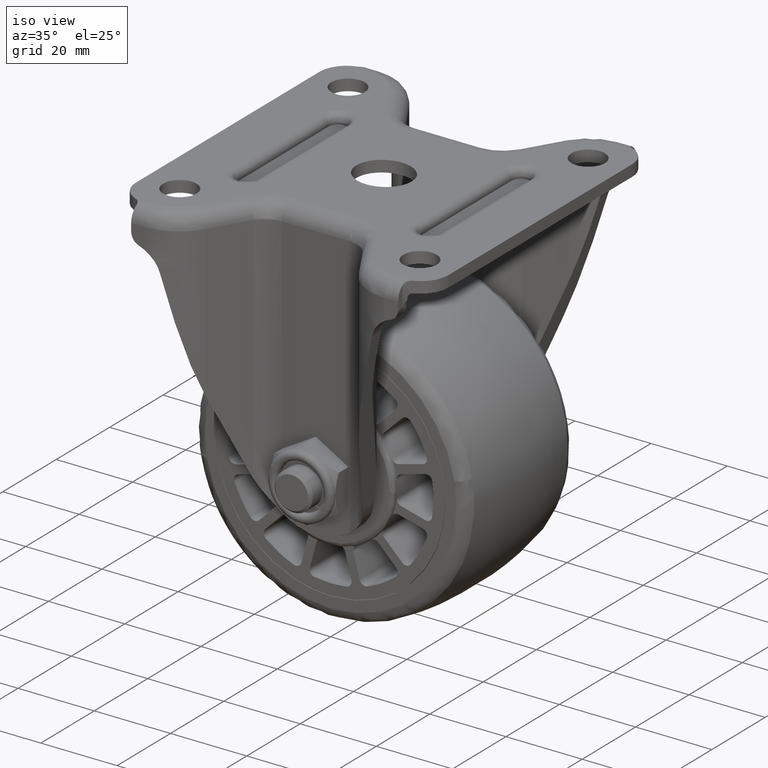
[diagram: clean part render]
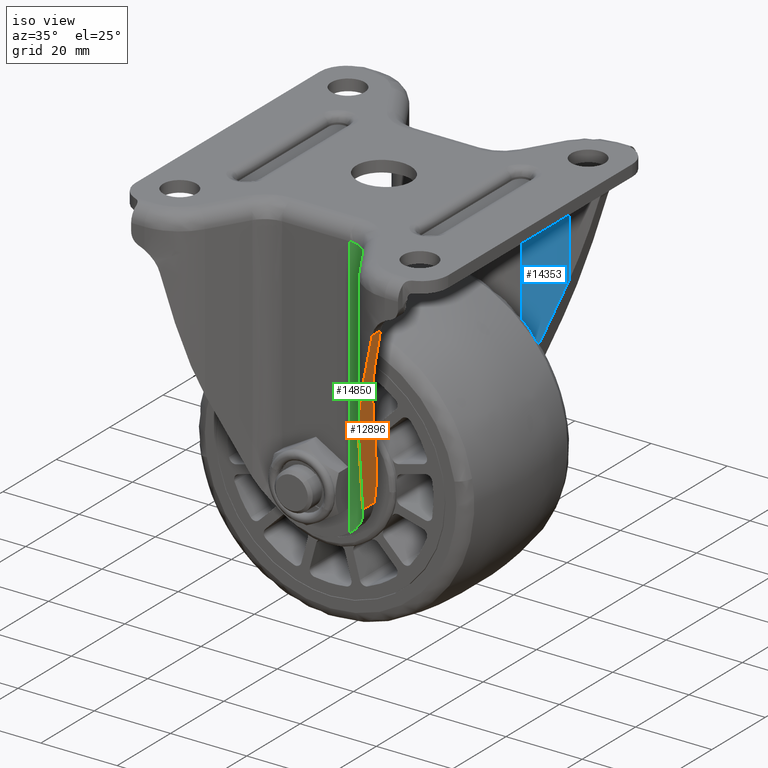
[diagram: same view with three faces highlighted in distinct colors, each labeled with its STEP entity id]
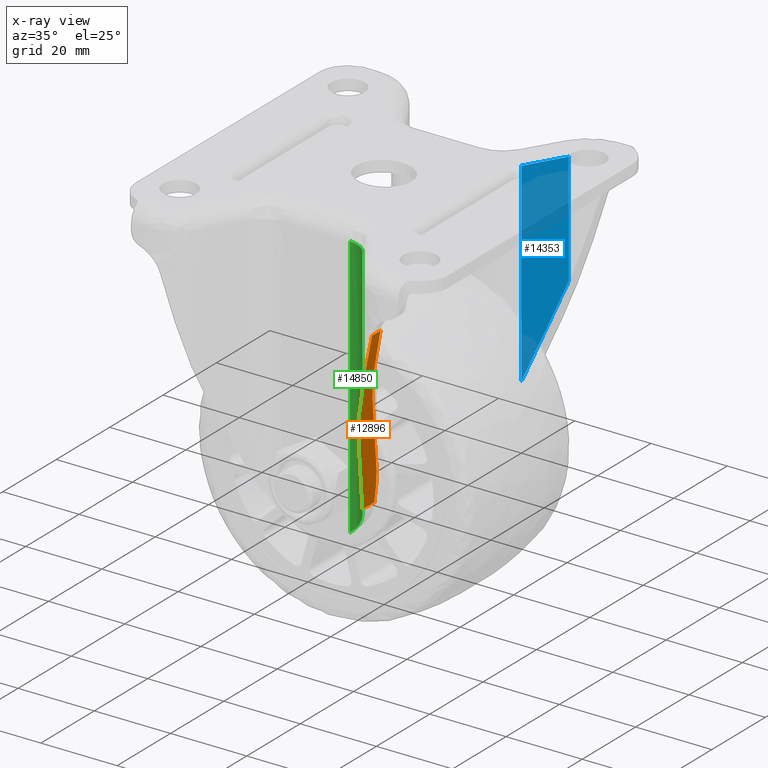
[diagram: x-ray of the same camera — body ghosted, the three highlighted faces saturated]
A machine part, iso view with three faces highlighted in distinct colors.
The next image is the same camera in x-ray (body ghosted, the three faces saturated) — at least one of them is partly hidden behind the body in this view.
Their STEP definitions:

[orange] entity #12896 — the highlighted face is a freeform B-spline surface patch.
#12759=CARTESIAN_POINT('',(14.506453999999900,-24.344544595174550,-2.316132000000000));
#12760=VERTEX_POINT('',#12759);
#12784=CARTESIAN_POINT('',(14.506453999999900,-28.742491813975601,-2.316132000000060));
#12785=VERTEX_POINT('',#12784);
#12786=CARTESIAN_POINT('',(14.506453999999900,-24.344544595174550,-2.316132000000000));
#12787=CARTESIAN_POINT('',(14.506453999999900,-28.742491813975601,-2.316132000000060));
#12788=QUASI_UNIFORM_CURVE('',1,(#12786,#12787),.UNSPECIFIED.,.F.,.U.);
#12789=EDGE_CURVE('',#12760,#12785,#12788,.T.);
#12824=CARTESIAN_POINT('',(28.507057730370722,-45.217106575156713,50.905077057196721));
#12825=CARTESIAN_POINT('',(13.840393229475060,-45.217106575156713,-4.848062779242298));
#12826=CARTESIAN_POINT('',(28.507057730370722,-23.351559222332629,50.905077057196721));
#12827=CARTESIAN_POINT('',(13.840393229475049,-23.351559222332629,-4.848062779242298));
#12828=B_SPLINE_SURFACE_WITH_KNOTS('',1,1,((#12824,#12826),(#12825,#12827)),.UNSPECIFIED.,.F.,.F.,.U.,(2,2),(2,2),(0.0,57.650009967070751),(0.0,21.865547352824080),.UNSPECIFIED.);
#12829=CARTESIAN_POINT('',(20.182175332900950,-38.293392560194100,19.259276991360551));
#12830=VERTEX_POINT('',#12829);
#12831=CARTESIAN_POINT('',(20.182175332900950,-38.293392560194100,19.259276991360551));
#12832=CARTESIAN_POINT('',(14.506453999999900,-28.742491813975601,-2.316132000000060));
#12833=QUASI_UNIFORM_CURVE('',1,(#12831,#12832),.UNSPECIFIED.,.F.,.U.);
#12834=EDGE_CURVE('',#12830,#12785,#12833,.T.);
#12835=ORIENTED_EDGE('',*,*,#12834,.T.);
#12836=ORIENTED_EDGE('',*,*,#12789,.F.);
#12837=CARTESIAN_POINT('',(17.047939620017200,-27.146797808951000,7.344946915146090));
#12838=VERTEX_POINT('',#12837);
#12839=CARTESIAN_POINT('',(14.506453999999900,-24.344544595174550,-2.316132000000000));
#12840=CARTESIAN_POINT('',(16.061875226058195,-25.487483934344471,3.596570040446713));
#12841=CARTESIAN_POINT('',(17.047939620017232,-27.146797808950922,7.344946915146082));
#12849=(BOUNDED_CURVE()B_SPLINE_CURVE(2,(#12839,#12840,#12841),.UNSPECIFIED.,.F.,.U.)CURVE()GEOMETRIC_REPRESENTATION_ITEM()QUASI_UNIFORM_CURVE()RATIONAL_B_SPLINE_CURVE((1.0,0.979977143394950,1.0))REPRESENTATION_ITEM(''));
#12850=EDGE_CURVE('',#12760,#12838,#12849,.T.);
#12851=ORIENTED_EDGE('',*,*,#12850,.T.);
#12852=CARTESIAN_POINT('',(22.761161623709349,-36.760803341968149,29.062909119095949));
#12853=VERTEX_POINT('',#12852);
#12854=CARTESIAN_POINT('',(22.761161623709349,-36.760803341968149,29.062909119095949));
#12855=CARTESIAN_POINT('',(17.047939620017200,-27.146797808951000,7.344946915146090));
#12856=QUASI_UNIFORM_CURVE('',1,(#12854,#12855),.UNSPECIFIED.,.F.,.U.);
#12857=EDGE_CURVE('',#12853,#12838,#12856,.T.);
#12858=ORIENTED_EDGE('',*,*,#12857,.F.);
#12859=CARTESIAN_POINT('',(27.840997317506201,-41.059645722472951,48.373147637546900));
#12860=VERTEX_POINT('',#12859);
#12861=CARTESIAN_POINT('',(27.840997317506211,-41.059645722473107,48.373147637546900));
#12862=CARTESIAN_POINT('',(24.559342147551295,-39.786717177350191,35.898424460078985));
#12863=CARTESIAN_POINT('',(22.761161623709310,-36.760803341968241,29.062909119095959));
#12871=(BOUNDED_CURVE()B_SPLINE_CURVE(2,(#12861,#12862,#12863),.UNSPECIFIED.,.F.,.U.)CURVE()GEOMETRIC_REPRESENTATION_ITEM()QUASI_UNIFORM_CURVE()RATIONAL_B_SPLINE_CURVE((1.0,0.945297380927358,1.0))REPRESENTATION_ITEM(''));
#12872=EDGE_CURVE('',#12860,#12853,#12871,.T.);
#12873=ORIENTED_EDGE('',*,*,#12872,.F.);
#12874=CARTESIAN_POINT('',(27.840997317506201,-44.224121735526602,48.373147637546900));
#12875=VERTEX_POINT('',#12874);
#12876=CARTESIAN_POINT('',(27.840997317506201,-41.059645722472951,48.373147637546900));
#12877=CARTESIAN_POINT('',(27.840997317506201,-44.224121735526602,48.373147637546900));
#12878=QUASI_UNIFORM_CURVE('',1,(#12876,#12877),.UNSPECIFIED.,.F.,.U.);
#12879=EDGE_CURVE('',#12860,#12875,#12878,.T.);
#12880=ORIENTED_EDGE('',*,*,#12879,.T.);
#12881=CARTESIAN_POINT('',(27.840997317506179,-44.224121735526722,48.373147637546900));
#12882=CARTESIAN_POINT('',(22.841961874282305,-42.769186168242307,29.370059232793686));
#12883=CARTESIAN_POINT('',(20.182175332900929,-38.293392560194192,19.259276991360551));
#12891=(BOUNDED_CURVE()B_SPLINE_CURVE(2,(#12881,#12882,#12883),.UNSPECIFIED.,.F.,.U.)CURVE()GEOMETRIC_REPRESENTATION_ITEM()QUASI_UNIFORM_CURVE()RATIONAL_B_SPLINE_CURVE((1.0,0.930253133576537,1.0))REPRESENTATION_ITEM(''));
#12892=EDGE_CURVE('',#12875,#12830,#12891,.T.);
#12893=ORIENTED_EDGE('',*,*,#12892,.T.);
#12894=EDGE_LOOP('',(#12835,#12836,#12851,#12858,#12873,#12880,#12893));
#12895=FACE_OUTER_BOUND('',#12894,.T.);
#12896=ADVANCED_FACE('',(#12895),#12828,.T.);

[blue] entity #14353 — the highlighted face is a freeform B-spline surface patch.
#12591=CARTESIAN_POINT('',(22.761161623709349,36.760803341968149,29.062909119095949));
#12592=VERTEX_POINT('',#12591);
#12606=CARTESIAN_POINT('',(17.047939620017200,27.146797808951000,7.344946915146090));
#12607=VERTEX_POINT('',#12606);
#12608=CARTESIAN_POINT('',(22.761161623709349,36.760803341968149,29.062909119095949));
#12609=CARTESIAN_POINT('',(17.047939620017200,27.146797808951000,7.344946915146090));
#12610=QUASI_UNIFORM_CURVE('',1,(#12608,#12609),.UNSPECIFIED.,.F.,.U.);
#12611=EDGE_CURVE('',#12592,#12607,#12610,.T.);
#14283=CARTESIAN_POINT('',(22.761161623709349,36.760803341968149,58.500002999999801));
#14284=VERTEX_POINT('',#14283);
#14297=CARTESIAN_POINT('',(22.761161623709349,36.760803341968149,29.062909119095949));
#14298=CARTESIAN_POINT('',(22.761161623709349,36.760803341968149,58.500002999999801));
#14299=QUASI_UNIFORM_CURVE('',1,(#14297,#14298),.UNSPECIFIED.,.F.,.U.);
#14300=EDGE_CURVE('',#12592,#14284,#14299,.T.);
#14332=CARTESIAN_POINT('',(23.046537051720421,37.241022899708568,4.789751962856073));
#14333=CARTESIAN_POINT('',(16.762564038765589,26.666577993342859,4.789751962856073));
#14334=CARTESIAN_POINT('',(23.046537051720421,37.241022899708568,61.055199324375351));
#14335=CARTESIAN_POINT('',(16.762564038765589,26.666577993342859,61.055199324375351));
#14336=B_SPLINE_SURFACE_WITH_KNOTS('',1,1,((#14332,#14334),(#14333,#14335)),.UNSPECIFIED.,.F.,.F.,.U.,(2,2),(2,2),(0.0,12.300699244567699),(0.0,56.265447361519279),.UNSPECIFIED.);
#14337=ORIENTED_EDGE('',*,*,#14300,.T.);
#14338=CARTESIAN_POINT('',(17.047939620017249,27.146797808951050,58.500002999999801));
#14339=VERTEX_POINT('',#14338);
#14340=CARTESIAN_POINT('',(22.761161623709349,36.760803341968149,58.500002999999801));
#14341=CARTESIAN_POINT('',(17.047939620017249,27.146797808951050,58.500002999999801));
#14342=QUASI_UNIFORM_CURVE('',1,(#14340,#14341),.UNSPECIFIED.,.F.,.U.);
#14343=EDGE_CURVE('',#14284,#14339,#14342,.T.);
#14344=ORIENTED_EDGE('',*,*,#14343,.T.);
#14345=CARTESIAN_POINT('',(17.047939620017200,27.146797808951000,7.344946915146090));
#14346=CARTESIAN_POINT('',(17.047939620017249,27.146797808951050,58.500002999999801));
#14347=QUASI_UNIFORM_CURVE('',1,(#14345,#14346),.UNSPECIFIED.,.F.,.U.);
#14348=EDGE_CURVE('',#12607,#14339,#14347,.T.);
#14349=ORIENTED_EDGE('',*,*,#14348,.F.);
#14350=ORIENTED_EDGE('',*,*,#12611,.F.);
#14351=EDGE_LOOP('',(#14337,#14344,#14349,#14350));
#14352=FACE_OUTER_BOUND('',#14351,.T.);
#14353=ADVANCED_FACE('',(#14352),#14336,.F.);

[green] entity #14850 — the highlighted face is a freeform B-spline surface patch.
#12653=CARTESIAN_POINT('',(8.881149699124080,-25.499996999999851,-10.588224849900520));
#12654=VERTEX_POINT('',#12653);
#12791=CARTESIAN_POINT('',(14.468953329208940,-28.679387027177000,-2.455930934328165));
#12792=VERTEX_POINT('',#12791);
#12798=CARTESIAN_POINT('',(8.881149699124080,-25.499996999999851,-10.588224849900520));
#12799=CARTESIAN_POINT('',(9.242251258747549,-25.499996999999858,-10.322925598155580));
#12800=CARTESIAN_POINT('',(9.586323255898753,-25.529791028210980,-10.045313525182040));
#12801=CARTESIAN_POINT('',(10.243685010551809,-25.635695578189349,-9.466256214676564));
#12802=CARTESIAN_POINT('',(10.556952402410550,-25.711912838248988,-9.164808947596574));
#12803=CARTESIAN_POINT('',(11.005059582531750,-25.854788615529529,-8.694876755694651));
#12804=CARTESIAN_POINT('',(11.150809008976760,-25.907208636942769,-8.535242158894713));
#12805=CARTESIAN_POINT('',(11.435052881864490,-26.020782841517718,-8.210107740457756));
#12806=CARTESIAN_POINT('',(11.572269626826101,-26.081419433000470,-8.046075787613301));
#12807=CARTESIAN_POINT('',(11.970197023222770,-26.273345783369692,-7.549548732422727));
#12808=CARTESIAN_POINT('',(12.217236734918250,-26.414602104202459,-7.212633818815934));
#12809=CARTESIAN_POINT('',(12.678518180476480,-26.717374027533911,-6.526583223585139));
#12810=CARTESIAN_POINT('',(12.892740870599660,-26.878931805311879,-6.177453915037090));
#12811=CARTESIAN_POINT('',(13.290569376880740,-27.217195461077520,-5.466120255369463));
#12812=CARTESIAN_POINT('',(13.474166804578051,-27.393942992311711,-5.103928931302856));
#12813=CARTESIAN_POINT('',(13.811874114942469,-27.757415664540840,-4.364911068402813));
#12814=CARTESIAN_POINT('',(13.964565083109740,-27.942642463577240,-3.991227000626437));
#12815=CARTESIAN_POINT('',(14.239458991694971,-28.313296669688249,-3.232912375763299));
#12816=CARTESIAN_POINT('',(14.361665695090760,-28.498847235905149,-2.848339142820071));
#12817=CARTESIAN_POINT('',(14.468953329208921,-28.679387027177000,-2.455930934328278));
#12818=B_SPLINE_CURVE_WITH_KNOTS('',3,(#12798,#12799,#12800,#12801,#12802,#12803,#12804,#12805,#12806,#12807,#12808,#12809,#12810,#12811,#12812,#12813,#12814,#12815,#12816,#12817),.UNSPECIFIED.,.F.,.U.,(4,2,2,2,2,2,2,2,2,4),(0.0,0.124999999999999,0.249999999999999,0.312499999999999,0.374999999999999,0.499999999999999,0.624999999999999,0.749999999999999,0.875000000000000,1.0),.UNSPECIFIED.);
#12819=EDGE_CURVE('',#12654,#12792,#12818,.T.);
#14797=CARTESIAN_POINT('',(14.468953329208940,-28.679387027177000,58.500000000000000));
#14798=VERTEX_POINT('',#14797);
#14804=CARTESIAN_POINT('',(14.468953329208940,-28.679387027177000,-2.455930934328165));
#14805=CARTESIAN_POINT('',(14.468953329208940,-28.679387027177000,58.500000000000000));
#14806=QUASI_UNIFORM_CURVE('',1,(#14804,#14805),.UNSPECIFIED.,.F.,.U.);
#14807=EDGE_CURVE('',#12792,#14798,#14806,.T.);
#14814=CARTESIAN_POINT('',(8.824427218384654,-25.500244500082740,-12.315430471148030));
#14815=CARTESIAN_POINT('',(8.824427218384654,-25.500244500082740,60.270385761778691));
#14816=CARTESIAN_POINT('',(12.777027876776311,-25.465750676707287,-12.315430471148034));
#14817=CARTESIAN_POINT('',(12.777027876776311,-25.465750676707287,60.270385761778691));
#14818=CARTESIAN_POINT('',(14.626097128265927,-28.959342623653139,-12.315430471148032));
#14819=CARTESIAN_POINT('',(14.626097128265927,-28.959342623653139,60.270385761778691));
#14827=(BOUNDED_SURFACE()B_SPLINE_SURFACE(1,2,((#14814,#14816,#14818),(#14815,#14817,#14819)),.UNSPECIFIED.,.F.,.F.,.U.)B_SPLINE_SURFACE_WITH_KNOTS((2,2),(3,3),(0.0,72.585816232926732),(0.0,7.284877984368117),.UNSPECIFIED.)GEOMETRIC_REPRESENTATION_ITEM()RATIONAL_B_SPLINE_SURFACE(((1.0,0.853601877455077,0.998089126636252),(1.0,0.853601877455077,0.998089126636252)))REPRESENTATION_ITEM('')SURFACE());
#14828=ORIENTED_EDGE('',*,*,#14807,.T.);
#14829=CARTESIAN_POINT('',(8.881149699124080,-25.499996999999851,58.500000000000000));
#14830=VERTEX_POINT('',#14829);
#14831=CARTESIAN_POINT('',(14.468953329208940,-28.679387027177000,58.500000000000000));
#14832=CARTESIAN_POINT('',(14.200645769410540,-28.227671733691551,58.500000000000043));
#14833=CARTESIAN_POINT('',(13.532128008992689,-27.361921135787352,58.499999999999879));
#14834=CARTESIAN_POINT('',(12.335001099201801,-26.427359017246420,58.500000000000107));
#14835=CARTESIAN_POINT('',(11.186799938415961,-25.891944122078151,58.499999999999808));
#14836=CARTESIAN_POINT('',(10.071995430808840,-25.577627642649709,58.500000000000483));
#14837=CARTESIAN_POINT('',(9.336490909191353,-25.499916781708240,58.499999999999382));
#14838=CARTESIAN_POINT('',(8.881149699124080,-25.499996999999851,58.500000000000000));
#14839=B_SPLINE_CURVE_WITH_KNOTS('',3,(#14831,#14832,#14833,#14834,#14835,#14836,#14837,#14838),.UNSPECIFIED.,.F.,.U.,(4,1,1,1,1,4),(0.000000036557651,1.576175418780431,3.257443486187769,4.518375308464443,5.359008256997358,6.725024363028370),.UNSPECIFIED.);
#14840=EDGE_CURVE('',#14798,#14830,#14839,.T.);
#14841=ORIENTED_EDGE('',*,*,#14840,.T.);
#14842=CARTESIAN_POINT('',(8.881149699124080,-25.499996999999851,-10.588224849900520));
#14843=CARTESIAN_POINT('',(8.881149699124080,-25.499996999999851,58.500000000000000));
#14844=QUASI_UNIFORM_CURVE('',1,(#14842,#14843),.UNSPECIFIED.,.F.,.U.);
#14845=EDGE_CURVE('',#12654,#14830,#14844,.T.);
#14846=ORIENTED_EDGE('',*,*,#14845,.F.);
#14847=ORIENTED_EDGE('',*,*,#12819,.T.);
#14848=EDGE_LOOP('',(#14828,#14841,#14846,#14847));
#14849=FACE_OUTER_BOUND('',#14848,.T.);
#14850=ADVANCED_FACE('',(#14849),#14827,.F.);